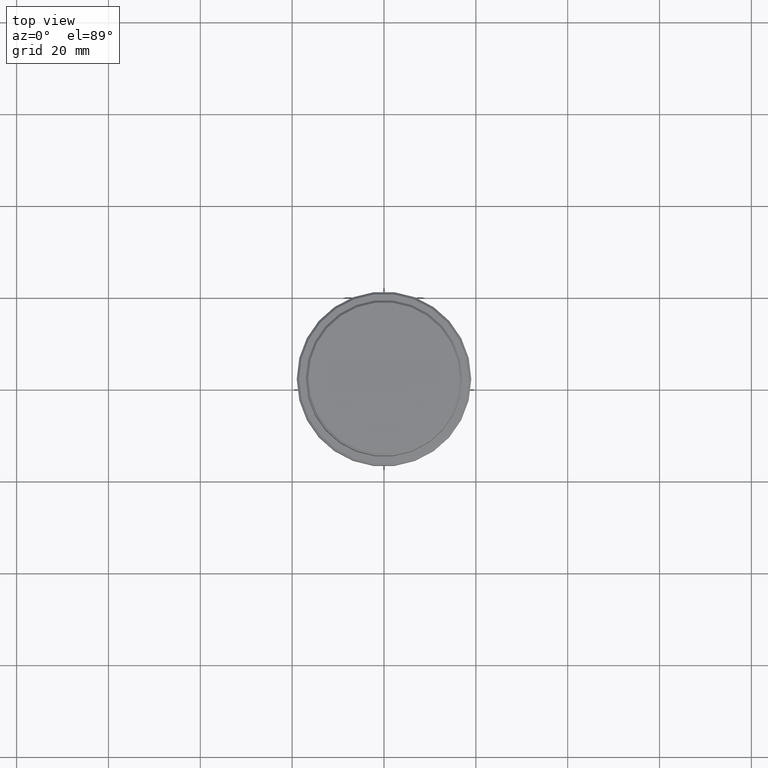
[diagram: clean part render]
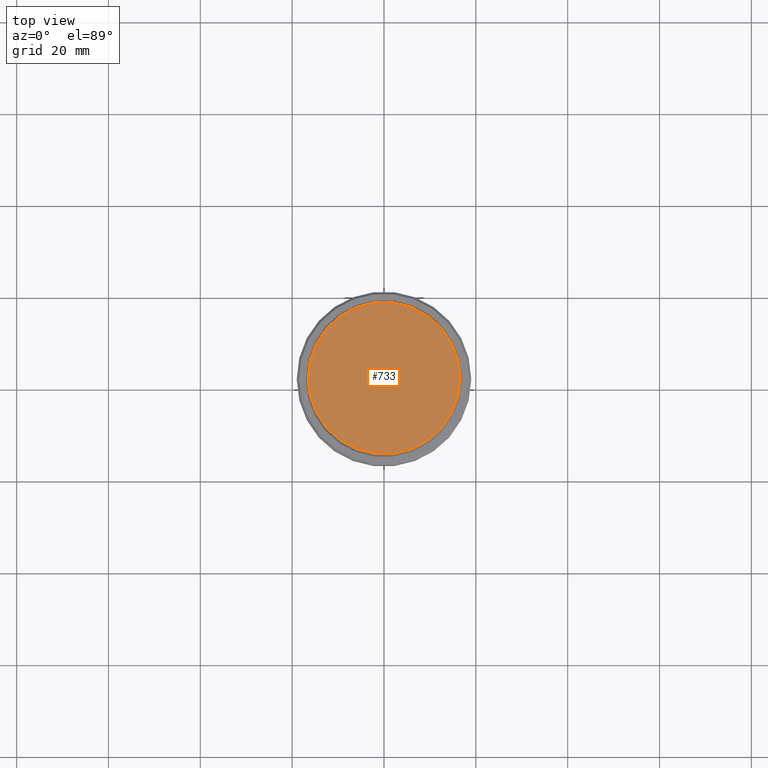
[diagram: same view with one face highlighted and labeled with its STEP entity id]
A machine part, top view. The second image highlights one B-rep face of the part: STEP entity #733.
In plain terms, the highlighted planar face has unit normal (0, -0, 1).
Its self-contained STEP definition (entity closure, byte-faithful):
#44 = VERTEX_POINT ( 'NONE', #204 ) ;
#204 = CARTESIAN_POINT ( 'NONE',  ( 16.49999999999995737, 2.051283388571813732E-15, 0.000000000000000000 ) ) ;
#230 = AXIS2_PLACEMENT_3D ( 'NONE', #923, #1271, #1265 ) ;
#350 = VERTEX_POINT ( 'NONE', #668 ) ;
#360 = AXIS2_PLACEMENT_3D ( 'NONE', #1216, #561, #983 ) ;
#370 = EDGE_CURVE ( 'NONE', #350, #44, #1081, .T. ) ;
#434 = EDGE_LOOP ( 'NONE', ( #987, #778 ) ) ;
#561 = DIRECTION ( 'NONE',  ( 0.000000000000000000, -0.000000000000000000, 1.000000000000000000 ) ) ;
#634 = CIRCLE ( 'NONE', #230, 16.49999999999995737 ) ;
#668 = CARTESIAN_POINT ( 'NONE',  ( -16.49999999999995737, 0.000000000000000000, 0.000000000000000000 ) ) ;
#733 = ADVANCED_FACE ( 'NONE', ( #1381 ), #1227, .T. ) ;
#778 = ORIENTED_EDGE ( 'NONE', *, *, #1208, .T. ) ;
#923 = CARTESIAN_POINT ( 'NONE',  ( 0.000000000000000000, 0.000000000000000000, 0.000000000000000000 ) ) ;
#934 = AXIS2_PLACEMENT_3D ( 'NONE', #1079, #1189, #981 ) ;
#981 = DIRECTION ( 'NONE',  ( 1.000000000000000000, 0.000000000000000000, 0.000000000000000000 ) ) ;
#983 = DIRECTION ( 'NONE',  ( 1.000000000000000000, 0.000000000000000000, 0.000000000000000000 ) ) ;
#987 = ORIENTED_EDGE ( 'NONE', *, *, #370, .T. ) ;
#1079 = CARTESIAN_POINT ( 'NONE',  ( 0.000000000000000000, 0.000000000000000000, 0.000000000000000000 ) ) ;
#1081 = CIRCLE ( 'NONE', #934, 16.49999999999995737 ) ;
#1189 = DIRECTION ( 'NONE',  ( -0.000000000000000000, -0.000000000000000000, 1.000000000000000000 ) ) ;
#1208 = EDGE_CURVE ( 'NONE', #44, #350, #634, .T. ) ;
#1216 = CARTESIAN_POINT ( 'NONE',  ( 0.000000000000000000, 0.000000000000000000, 0.000000000000000000 ) ) ;
#1227 = PLANE ( 'NONE',  #360 ) ;
#1265 = DIRECTION ( 'NONE',  ( 1.000000000000000000, 0.000000000000000000, 0.000000000000000000 ) ) ;
#1271 = DIRECTION ( 'NONE',  ( -0.000000000000000000, -0.000000000000000000, 1.000000000000000000 ) ) ;
#1381 = FACE_OUTER_BOUND ( 'NONE', #434, .T. ) ;